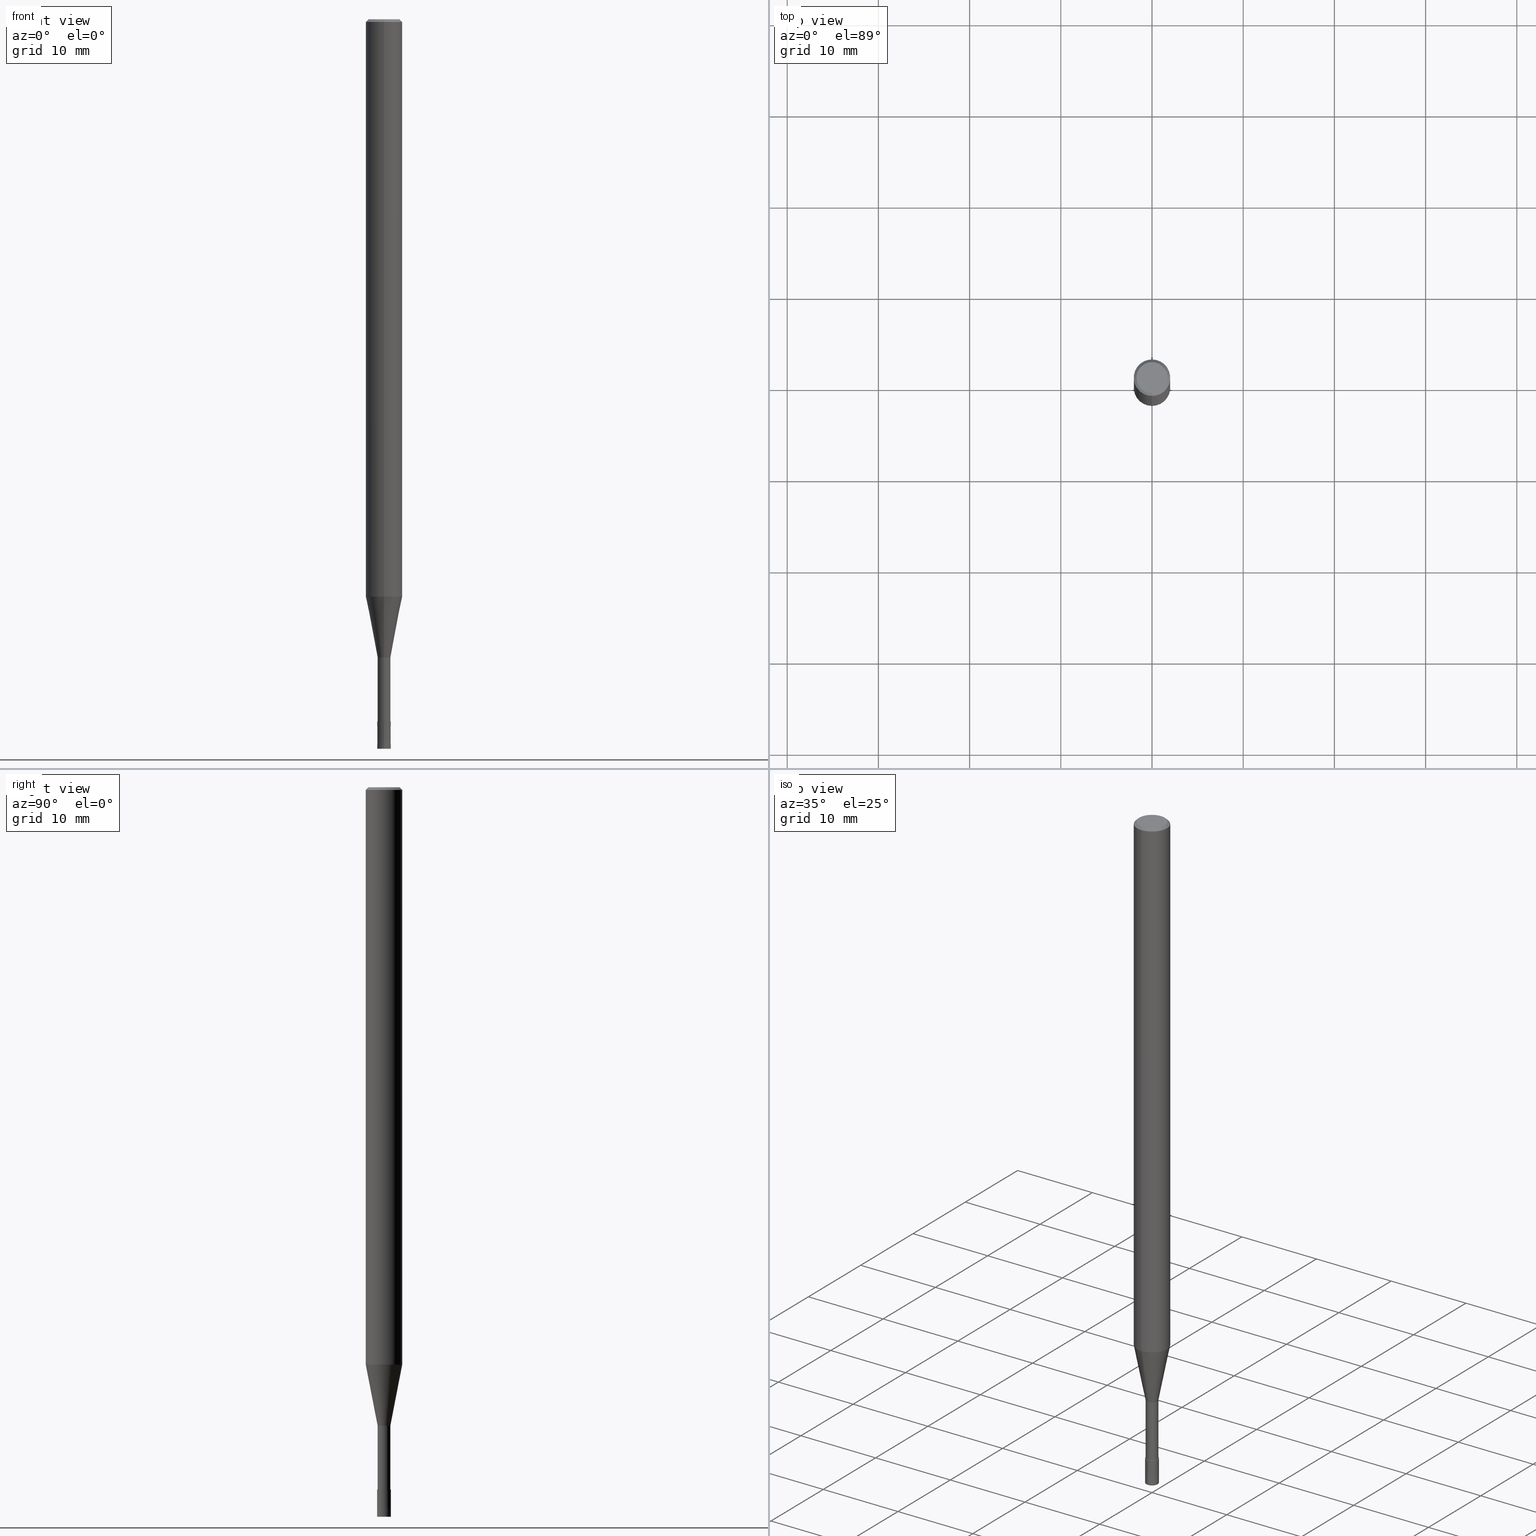
[diagram: canonical four-view strip — front | top / right | iso, engineering-drawing reading convention]
A machine part, canonical four-view strip (front | top / right | iso — engineering-drawing reading convention). The complete STEP part file that produces these views, byte-faithful:
ISO-10303-21;
HEADER;
FILE_DESCRIPTION(('no description'),'unknown implementation level');
FILE_NAME('CPRL2015-10-Huellk.stp','  ',('CIMSOURCE GmbH'),('CADClick - KiM GmbH - www.kimweb.de'),'unknown preprocess','ACIS','unknown authorization');
FILE_SCHEMA(('automotive_design'));
ENDSEC;
DATA;
#1=MECHANICAL_DESIGN_GEOMETRIC_PRESENTATION_REPRESENTATION(' ',(#14,#15,#16,#17,#18,#19,#20,#21,#22,#23,#24,#25,#26,#27,#28,#29,#30,#31,#32,#33,#34,#35,#36,#37,#38,#39,#40,#41,#42,#43,#44,#45,#46,#47,#48,#49,#50,#51,#52,#53,#54,#55,#56,#57,#58,#59,#60,#61,#62,#63,#64,#65,#66,#67,#68,#69,#70,#71,#72),#10);
#2=PRODUCT_DEFINITION_CONTEXT('',#73,'design');
#3=APPLICATION_PROTOCOL_DEFINITION('INTERNATIONAL STANDARD','automotive_design',1994,#73);
#4=PRODUCT_CATEGORY_RELATIONSHIP('NONE','NONE',#74,#75);
#5=SHAPE_DEFINITION_REPRESENTATION(#76,#77);
#6=PRODUCT_DEFINITION_CONTEXT('',#78,'design');
#7=APPLICATION_PROTOCOL_DEFINITION('INTERNATIONAL STANDARD','automotive_design',1994,#78);
#8=PRODUCT_CATEGORY_RELATIONSHIP('NONE','NONE',#79,#80);
#9=SHAPE_DEFINITION_REPRESENTATION(#81,#82);
#10= (GEOMETRIC_REPRESENTATION_CONTEXT(3)GLOBAL_UNCERTAINTY_ASSIGNED_CONTEXT((#85))GLOBAL_UNIT_ASSIGNED_CONTEXT((#87,#88,#89))REPRESENTATION_CONTEXT('NONE','WORKSPACE'));
#14=STYLED_ITEM('',(#91),#92);
#15=STYLED_ITEM('',(#93),#94);
#16=STYLED_ITEM('',(#95),#96);
#17=STYLED_ITEM('',(#97),#98);
#18=STYLED_ITEM('',(#99),#100);
#19=STYLED_ITEM('',(#101),#102);
#20=STYLED_ITEM('',(#103),#104);
#21=STYLED_ITEM('',(#105),#106);
#22=STYLED_ITEM('',(#107),#108);
#23=STYLED_ITEM('',(#109),#110);
#24=STYLED_ITEM('',(#111),#112);
#25=STYLED_ITEM('',(#113),#114);
#26=STYLED_ITEM('',(#115),#116);
#27=STYLED_ITEM('',(#117),#118);
#28=STYLED_ITEM('',(#119),#120);
#29=STYLED_ITEM('',(#121),#122);
#30=STYLED_ITEM('',(#123),#124);
#31=STYLED_ITEM('',(#125),#126);
#32=STYLED_ITEM('',(#127),#128);
#33=STYLED_ITEM('',(#129),#130);
#34=STYLED_ITEM('',(#131),#132);
#35=STYLED_ITEM('',(#133),#134);
#36=STYLED_ITEM('',(#135),#136);
#37=STYLED_ITEM('',(#137),#138);
#38=STYLED_ITEM('',(#139),#140);
#39=STYLED_ITEM('',(#141),#142);
#40=STYLED_ITEM('',(#143),#144);
#41=STYLED_ITEM('',(#145),#146);
#42=STYLED_ITEM('',(#147),#148);
#43=STYLED_ITEM('',(#149),#150);
#44=STYLED_ITEM('',(#151),#152);
#45=STYLED_ITEM('',(#153),#154);
#46=STYLED_ITEM('',(#155),#156);
#47=STYLED_ITEM('',(#157),#158);
#48=STYLED_ITEM('',(#159),#160);
#49=STYLED_ITEM('',(#161),#162);
#50=STYLED_ITEM('',(#163),#164);
#51=STYLED_ITEM('',(#165),#166);
#52=STYLED_ITEM('',(#167),#168);
#53=STYLED_ITEM('',(#169),#170);
#54=STYLED_ITEM('',(#171),#172);
#55=STYLED_ITEM('',(#173),#174);
#56=STYLED_ITEM('',(#175),#176);
#57=STYLED_ITEM('',(#177),#178);
#58=STYLED_ITEM('',(#179),#180);
#59=STYLED_ITEM('',(#181),#182);
#60=STYLED_ITEM('',(#183),#184);
#61=STYLED_ITEM('',(#185),#186);
#62=STYLED_ITEM('',(#187),#188);
#63=STYLED_ITEM('',(#189),#190);
#64=STYLED_ITEM('',(#191),#192);
#65=STYLED_ITEM('',(#193),#194);
#66=STYLED_ITEM('',(#195),#196);
#67=STYLED_ITEM('',(#197),#198);
#68=STYLED_ITEM('',(#199),#200);
#69=STYLED_ITEM('',(#201),#202);
#70=STYLED_ITEM('',(#203),#204);
#71=STYLED_ITEM('',(#205),#206);
#72=STYLED_ITEM('',(#207),#208);
#73=APPLICATION_CONTEXT(' ');
#74=PRODUCT_CATEGORY('part','NONE');
#75=PRODUCT_RELATED_PRODUCT_CATEGORY('detail',' ',(#209));
#76=PRODUCT_DEFINITION_SHAPE('NONE','NONE',#210);
#77=ADVANCED_BREP_SHAPE_REPRESENTATION('1',(#132,#211),#10);
#78=APPLICATION_CONTEXT(' ');
#79=PRODUCT_CATEGORY('part','NONE');
#80=PRODUCT_RELATED_PRODUCT_CATEGORY('detail',' ',(#212));
#81=PRODUCT_DEFINITION_SHAPE('NONE','NONE',#213);
#82=ADVANCED_BREP_SHAPE_REPRESENTATION('2',(#172,#214),#10);
#85=UNCERTAINTY_MEASURE_WITH_UNIT(LENGTH_MEASURE(1.0E-006),#87,'','');
#87= (CONVERSION_BASED_UNIT('MILLIMETRE',#217)LENGTH_UNIT()NAMED_UNIT(#220));
#88= (NAMED_UNIT(#222)PLANE_ANGLE_UNIT()SI_UNIT($,.RADIAN.));
#89= (NAMED_UNIT(#222)SOLID_ANGLE_UNIT()SI_UNIT($,.STERADIAN.));
#91=PRESENTATION_STYLE_ASSIGNMENT((#228));
#92=EDGE_CURVE('',#110,#204,#229,.T.);
#93=PRESENTATION_STYLE_ASSIGNMENT((#230));
#94=EDGE_CURVE('',#164,#182,#231,.T.);
#95=PRESENTATION_STYLE_ASSIGNMENT((#232));
#96=ADVANCED_FACE('',(#233),#234,.T.);
#97=PRESENTATION_STYLE_ASSIGNMENT((#235));
#98=EDGE_CURVE('',#182,#116,#236,.T.);
#99=PRESENTATION_STYLE_ASSIGNMENT((#237));
#100=ADVANCED_FACE('',(#238),#239,.T.);
#101=PRESENTATION_STYLE_ASSIGNMENT((#240));
#102=VERTEX_POINT('',#241);
#103=PRESENTATION_STYLE_ASSIGNMENT((#242));
#104=ADVANCED_FACE('',(#243),#244,.T.);
#105=PRESENTATION_STYLE_ASSIGNMENT((#245));
#106=VERTEX_POINT('',#246);
#107=PRESENTATION_STYLE_ASSIGNMENT((#247));
#108=EDGE_CURVE('',#102,#120,#248,.T.);
#109=PRESENTATION_STYLE_ASSIGNMENT((#249));
#110=VERTEX_POINT('',#250);
#111=PRESENTATION_STYLE_ASSIGNMENT((#251));
#112=EDGE_CURVE('',#204,#144,#252,.T.);
#113=PRESENTATION_STYLE_ASSIGNMENT((#253));
#114=EDGE_CURVE('',#156,#144,#254,.T.);
#115=PRESENTATION_STYLE_ASSIGNMENT((#255));
#116=VERTEX_POINT('',#256);
#117=PRESENTATION_STYLE_ASSIGNMENT((#257));
#118=EDGE_CURVE('',#126,#120,#258,.T.);
#119=PRESENTATION_STYLE_ASSIGNMENT((#259));
#120=VERTEX_POINT('',#260);
#121=PRESENTATION_STYLE_ASSIGNMENT((#261));
#122=EDGE_CURVE('',#178,#170,#262,.T.);
#123=PRESENTATION_STYLE_ASSIGNMENT((#263));
#124=EDGE_CURVE('',#150,#106,#264,.T.);
#125=PRESENTATION_STYLE_ASSIGNMENT((#265));
#126=VERTEX_POINT('',#266);
#127=PRESENTATION_STYLE_ASSIGNMENT((#267));
#128=ADVANCED_FACE('',(#268),#269,.T.);
#129=PRESENTATION_STYLE_ASSIGNMENT((#270));
#130=ADVANCED_FACE('',(#271,#272),#273,.T.);
#131=PRESENTATION_STYLE_ASSIGNMENT((#274));
#132=MANIFOLD_SOLID_BREP('1',#275);
#133=PRESENTATION_STYLE_ASSIGNMENT((#276));
#134=EDGE_CURVE('',#126,#174,#277,.T.);
#135=PRESENTATION_STYLE_ASSIGNMENT((#278));
#136=ADVANCED_FACE('',(#279),#280,.T.);
#137=PRESENTATION_STYLE_ASSIGNMENT((#281));
#138=ADVANCED_FACE('',(#282),#283,.T.);
#139=PRESENTATION_STYLE_ASSIGNMENT((#284));
#140=ADVANCED_FACE('',(#285),#286,.T.);
#141=PRESENTATION_STYLE_ASSIGNMENT((#287));
#142=EDGE_CURVE('',#156,#110,#288,.T.);
#143=PRESENTATION_STYLE_ASSIGNMENT((#289));
#144=VERTEX_POINT('',#290);
#145=PRESENTATION_STYLE_ASSIGNMENT((#291));
#146=EDGE_CURVE('',#106,#164,#292,.T.);
#147=PRESENTATION_STYLE_ASSIGNMENT((#293));
#148=ADVANCED_FACE('',(#294),#295,.T.);
#149=PRESENTATION_STYLE_ASSIGNMENT((#296));
#150=VERTEX_POINT('',#297);
#151=PRESENTATION_STYLE_ASSIGNMENT((#298));
#152=ADVANCED_FACE('',(#299),#300,.T.);
#153=PRESENTATION_STYLE_ASSIGNMENT((#301));
#154=EDGE_CURVE('',#168,#150,#302,.T.);
#155=PRESENTATION_STYLE_ASSIGNMENT((#303));
#156=VERTEX_POINT('',#304);
#157=PRESENTATION_STYLE_ASSIGNMENT((#305));
#158=EDGE_CURVE('',#116,#168,#306,.T.);
#159=PRESENTATION_STYLE_ASSIGNMENT((#307));
#160=EDGE_CURVE('',#106,#150,#308,.T.);
#161=PRESENTATION_STYLE_ASSIGNMENT((#309));
#162=ADVANCED_FACE('',(#310),#311,.T.);
#163=PRESENTATION_STYLE_ASSIGNMENT((#312));
#164=VERTEX_POINT('',#313);
#165=PRESENTATION_STYLE_ASSIGNMENT((#314));
#166=EDGE_CURVE('',#168,#164,#315,.T.);
#167=PRESENTATION_STYLE_ASSIGNMENT((#316));
#168=VERTEX_POINT('',#317);
#169=PRESENTATION_STYLE_ASSIGNMENT((#318));
#170=VERTEX_POINT('',#319);
#171=PRESENTATION_STYLE_ASSIGNMENT((#320));
#172=MANIFOLD_SOLID_BREP('2',#321);
#173=PRESENTATION_STYLE_ASSIGNMENT((#322));
#174=VERTEX_POINT('',#323);
#175=PRESENTATION_STYLE_ASSIGNMENT((#324));
#176=ADVANCED_FACE('',(#325),#326,.T.);
#177=PRESENTATION_STYLE_ASSIGNMENT((#327));
#178=VERTEX_POINT('',#328);
#179=PRESENTATION_STYLE_ASSIGNMENT((#329));
#180=ADVANCED_FACE('',(#330),#331,.T.);
#181=PRESENTATION_STYLE_ASSIGNMENT((#332));
#182=VERTEX_POINT('',#333);
#183=PRESENTATION_STYLE_ASSIGNMENT((#334));
#184=EDGE_CURVE('',#116,#182,#335,.T.);
#185=PRESENTATION_STYLE_ASSIGNMENT((#336));
#186=ADVANCED_FACE('',(#337),#338,.T.);
#187=PRESENTATION_STYLE_ASSIGNMENT((#339));
#188=EDGE_CURVE('',#178,#156,#340,.T.);
#189=PRESENTATION_STYLE_ASSIGNMENT((#341));
#190=EDGE_CURVE('',#144,#156,#342,.T.);
#191=PRESENTATION_STYLE_ASSIGNMENT((#343));
#192=EDGE_CURVE('',#204,#110,#344,.T.);
#193=PRESENTATION_STYLE_ASSIGNMENT((#345));
#194=EDGE_CURVE('',#102,#174,#346,.T.);
#195=PRESENTATION_STYLE_ASSIGNMENT((#347));
#196=EDGE_CURVE('',#174,#102,#348,.T.);
#197=PRESENTATION_STYLE_ASSIGNMENT((#349));
#198=EDGE_CURVE('',#120,#126,#350,.T.);
#199=PRESENTATION_STYLE_ASSIGNMENT((#351));
#200=EDGE_CURVE('',#170,#178,#352,.T.);
#201=PRESENTATION_STYLE_ASSIGNMENT((#353));
#202=ADVANCED_FACE('',(#354),#355,.T.);
#203=PRESENTATION_STYLE_ASSIGNMENT((#356));
#204=VERTEX_POINT('',#357);
#205=PRESENTATION_STYLE_ASSIGNMENT((#358));
#206=EDGE_CURVE('',#164,#168,#359,.T.);
#207=PRESENTATION_STYLE_ASSIGNMENT((#360));
#208=EDGE_CURVE('',#144,#170,#361,.T.);
#209=PRODUCT('1','1','PART-1-DESC',(#362));
#210=PRODUCT_DEFINITION('NONE','NONE',#363,#2);
#211=AXIS2_PLACEMENT_3D('',#364,#365,#366);
#212=PRODUCT('2','2','PART-2-DESC',(#367));
#213=PRODUCT_DEFINITION('NONE','NONE',#368,#6);
#214=AXIS2_PLACEMENT_3D('',#369,#370,#371);
#217=LENGTH_MEASURE_WITH_UNIT(LENGTH_MEASURE(1.0),#372);
#220=DIMENSIONAL_EXPONENTS(1.0,0.0,0.0,0.0,0.0,0.0,0.0);
#222=DIMENSIONAL_EXPONENTS(0.0,0.0,0.0,0.0,0.0,0.0,0.0);
#228=CURVE_STYLE('',#373,POSITIVE_LENGTH_MEASURE(1.0E-006),#374);
#229=CIRCLE('',#375,1.99995);
#230=CURVE_STYLE('',#376,POSITIVE_LENGTH_MEASURE(1.0E-006),#377);
#231=LINE('',#378,#379);
#232=SURFACE_STYLE_USAGE(.BOTH.,#380);
#233=FACE_OUTER_BOUND('',#381,.T.);
#234=CYLINDRICAL_SURFACE('',#382,0.69995);
#235=CURVE_STYLE('',#383,POSITIVE_LENGTH_MEASURE(1.0E-006),#384);
#236=CIRCLE('',#385,1.7);
#237=SURFACE_STYLE_USAGE(.BOTH.,#386);
#238=FACE_OUTER_BOUND('',#387,.T.);
#239=CYLINDRICAL_SURFACE('',#388,2.0);
#240=POINT_STYLE(' ',#389,POSITIVE_LENGTH_MEASURE(1.0E-006),#390);
#241=CARTESIAN_POINT('',(9.18454765366783E-017,-0.75,-80.0));
#242=SURFACE_STYLE_USAGE(.BOTH.,#391);
#243=FACE_OUTER_BOUND('',#392,.T.);
#244=PLANE('',#393);
#245=POINT_STYLE(' ',#394,POSITIVE_LENGTH_MEASURE(1.0E-006),#395);
#246=CARTESIAN_POINT('',(2.44921270764475E-016,-2.0,-63.312));
#247=CURVE_STYLE('',#396,POSITIVE_LENGTH_MEASURE(1.0E-006),#397);
#248=LINE('',#398,#399);
#249=POINT_STYLE(' ',#400,POSITIVE_LENGTH_MEASURE(1.0E-006),#401);
#250=CARTESIAN_POINT('',(2.44915147732706E-016,-1.99995,-63.312));
#251=CURVE_STYLE('',#402,POSITIVE_LENGTH_MEASURE(1.0E-006),#403);
#252=LINE('',#404,#405);
#253=CURVE_STYLE('',#406,POSITIVE_LENGTH_MEASURE(1.0E-006),#407);
#254=CIRCLE('',#408,0.69995);
#255=POINT_STYLE(' ',#409,POSITIVE_LENGTH_MEASURE(1.0E-006),#410);
#256=CARTESIAN_POINT('',(0.0,1.7,0.0));
#257=CURVE_STYLE('',#411,POSITIVE_LENGTH_MEASURE(1.0E-006),#412);
#258=CIRCLE('',#413,0.7499);
#259=POINT_STYLE(' ',#414,POSITIVE_LENGTH_MEASURE(1.0E-006),#415);
#260=CARTESIAN_POINT('',(9.18332304731401E-017,-0.7499,-77.0));
#261=CURVE_STYLE('',#416,POSITIVE_LENGTH_MEASURE(1.0E-006),#417);
#262=CIRCLE('',#418,0.69995);
#263=CURVE_STYLE('',#419,POSITIVE_LENGTH_MEASURE(1.0E-006),#420);
#264=CIRCLE('',#421,2.0);
#265=POINT_STYLE(' ',#422,POSITIVE_LENGTH_MEASURE(1.0E-006),#423);
#266=CARTESIAN_POINT('',(0.0,0.7499,-77.0));
#267=SURFACE_STYLE_USAGE(.BOTH.,#424);
#268=FACE_OUTER_BOUND('',#425,.T.);
#269=CONICAL_SURFACE('',#426,1.85,0.785398163397453);
#270=SURFACE_STYLE_USAGE(.BOTH.,#427);
#271=FACE_OUTER_BOUND('',#428,.T.);
#272=FACE_BOUND('',#429,.T.);
#273=PLANE('',#430);
#274=SURFACE_STYLE_USAGE(.BOTH.,#431);
#275=CLOSED_SHELL('',(#136,#176,#202,#162,#130,#140,#128,#100,#152,#96,#104));
#276=CURVE_STYLE('',#432,POSITIVE_LENGTH_MEASURE(1.0E-006),#433);
#277=LINE('',#434,#435);
#278=SURFACE_STYLE_USAGE(.BOTH.,#436);
#279=FACE_OUTER_BOUND('',#437,.T.);
#280=CYLINDRICAL_SURFACE('',#438,0.69995);
#281=SURFACE_STYLE_USAGE(.BOTH.,#439);
#282=FACE_OUTER_BOUND('',#440,.T.);
#283=CONICAL_SURFACE('',#441,0.74995,3.3333333320984E-005);
#284=SURFACE_STYLE_USAGE(.BOTH.,#442);
#285=FACE_OUTER_BOUND('',#443,.T.);
#286=PLANE('',#444);
#287=CURVE_STYLE('',#445,POSITIVE_LENGTH_MEASURE(1.0E-006),#446);
#288=LINE('',#447,#448);
#289=POINT_STYLE(' ',#449,POSITIVE_LENGTH_MEASURE(1.0E-006),#450);
#290=CARTESIAN_POINT('',(0.0,0.69995,-70.0));
#291=CURVE_STYLE('',#451,POSITIVE_LENGTH_MEASURE(1.0E-006),#452);
#292=LINE('',#453,#454);
#293=SURFACE_STYLE_USAGE(.BOTH.,#455);
#294=FACE_OUTER_BOUND('',#456,.T.);
#295=PLANE('',#457);
#296=POINT_STYLE(' ',#458,POSITIVE_LENGTH_MEASURE(1.0E-006),#459);
#297=CARTESIAN_POINT('',(0.0,2.0,-63.312));
#298=SURFACE_STYLE_USAGE(.BOTH.,#460);
#299=FACE_OUTER_BOUND('',#461,.T.);
#300=CONICAL_SURFACE('',#462,1.34995,0.191983983430966);
#301=CURVE_STYLE('',#463,POSITIVE_LENGTH_MEASURE(1.0E-006),#464);
#302=LINE('',#465,#466);
#303=POINT_STYLE(' ',#467,POSITIVE_LENGTH_MEASURE(1.0E-006),#468);
#304=CARTESIAN_POINT('',(8.57163217357973E-017,-0.69995,-70.0));
#305=CURVE_STYLE('',#469,POSITIVE_LENGTH_MEASURE(1.0E-006),#470);
#306=LINE('',#471,#472);
#307=CURVE_STYLE('',#473,POSITIVE_LENGTH_MEASURE(1.0E-006),#474);
#308=CIRCLE('',#475,2.0);
#309=SURFACE_STYLE_USAGE(.BOTH.,#476);
#310=FACE_OUTER_BOUND('',#477,.T.);
#311=CONICAL_SURFACE('',#478,1.85,0.785398163397453);
#312=POINT_STYLE(' ',#479,POSITIVE_LENGTH_MEASURE(1.0E-006),#480);
#313=CARTESIAN_POINT('',(2.44921270764475E-016,-2.0,-0.299999999999997));
#314=CURVE_STYLE('',#481,POSITIVE_LENGTH_MEASURE(1.0E-006),#482);
#315=CIRCLE('',#483,2.0);
#316=POINT_STYLE(' ',#484,POSITIVE_LENGTH_MEASURE(1.0E-006),#485);
#317=CARTESIAN_POINT('',(0.0,2.0,-0.299999999999997));
#318=POINT_STYLE(' ',#486,POSITIVE_LENGTH_MEASURE(1.0E-006),#487);
#319=CARTESIAN_POINT('',(0.0,0.69995,-77.0));
#320=SURFACE_STYLE_USAGE(.BOTH.,#488);
#321=CLOSED_SHELL('',(#138,#180,#186,#148));
#322=POINT_STYLE(' ',#489,POSITIVE_LENGTH_MEASURE(1.0E-006),#490);
#323=CARTESIAN_POINT('',(0.0,0.75,-80.0));
#324=SURFACE_STYLE_USAGE(.BOTH.,#491);
#325=FACE_OUTER_BOUND('',#492,.T.);
#326=CONICAL_SURFACE('',#493,1.34995,0.191983983430966);
#327=POINT_STYLE(' ',#494,POSITIVE_LENGTH_MEASURE(1.0E-006),#495);
#328=CARTESIAN_POINT('',(8.57163217357973E-017,-0.69995,-77.0));
#329=SURFACE_STYLE_USAGE(.BOTH.,#496);
#330=FACE_OUTER_BOUND('',#497,.T.);
#331=PLANE('',#498);
#332=POINT_STYLE(' ',#499,POSITIVE_LENGTH_MEASURE(1.0E-006),#500);
#333=CARTESIAN_POINT('',(2.08183080149804E-016,-1.7,0.0));
#334=CURVE_STYLE('',#501,POSITIVE_LENGTH_MEASURE(1.0E-006),#502);
#335=CIRCLE('',#503,1.7);
#336=SURFACE_STYLE_USAGE(.BOTH.,#504);
#337=FACE_OUTER_BOUND('',#505,.T.);
#338=CONICAL_SURFACE('',#506,0.74995,3.3333333320984E-005);
#339=CURVE_STYLE('',#507,POSITIVE_LENGTH_MEASURE(1.0E-006),#508);
#340=LINE('',#509,#510);
#341=CURVE_STYLE('',#511,POSITIVE_LENGTH_MEASURE(1.0E-006),#512);
#342=CIRCLE('',#513,0.69995);
#343=CURVE_STYLE('',#514,POSITIVE_LENGTH_MEASURE(1.0E-006),#515);
#344=CIRCLE('',#516,1.99995);
#345=CURVE_STYLE('',#517,POSITIVE_LENGTH_MEASURE(1.0E-006),#518);
#346=CIRCLE('',#519,0.75);
#347=CURVE_STYLE('',#520,POSITIVE_LENGTH_MEASURE(1.0E-006),#521);
#348=CIRCLE('',#522,0.75);
#349=CURVE_STYLE('',#523,POSITIVE_LENGTH_MEASURE(1.0E-006),#524);
#350=CIRCLE('',#525,0.7499);
#351=CURVE_STYLE('',#526,POSITIVE_LENGTH_MEASURE(1.0E-006),#527);
#352=CIRCLE('',#528,0.69995);
#353=SURFACE_STYLE_USAGE(.BOTH.,#529);
#354=FACE_OUTER_BOUND('',#530,.T.);
#355=CYLINDRICAL_SURFACE('',#531,2.0);
#356=POINT_STYLE(' ',#532,POSITIVE_LENGTH_MEASURE(1.0E-006),#533);
#357=CARTESIAN_POINT('',(0.0,1.99995,-63.312));
#358=CURVE_STYLE('',#534,POSITIVE_LENGTH_MEASURE(1.0E-006),#535);
#359=CIRCLE('',#536,2.0);
#360=CURVE_STYLE('',#537,POSITIVE_LENGTH_MEASURE(1.0E-006),#538);
#361=LINE('',#539,#540);
#362=PRODUCT_CONTEXT('',#73,'mechanical');
#363=PRODUCT_DEFINITION_FORMATION_WITH_SPECIFIED_SOURCE(' ','NONE',#209,.NOT_KNOWN.);
#364=CARTESIAN_POINT('',(0.0,0.0,0.0));
#365=DIRECTION('',(0.0,0.0,1.0));
#366=DIRECTION('',(1.0,0.0,0.0));
#367=PRODUCT_CONTEXT('',#78,'mechanical');
#368=PRODUCT_DEFINITION_FORMATION_WITH_SPECIFIED_SOURCE(' ','NONE',#212,.NOT_KNOWN.);
#369=CARTESIAN_POINT('',(0.0,0.0,0.0));
#370=DIRECTION('',(0.0,0.0,1.0));
#371=DIRECTION('',(1.0,0.0,0.0));
#372= (NAMED_UNIT(#220)LENGTH_UNIT()SI_UNIT(.MILLI.,.METRE.));
#373=DRAUGHTING_PRE_DEFINED_CURVE_FONT('continuous');
#374=COLOUR_RGB('',0.498039215803146,0.498039215803146,0.498039215803146);
#375=AXIS2_PLACEMENT_3D('',#542,#543,#544);
#376=DRAUGHTING_PRE_DEFINED_CURVE_FONT('continuous');
#377=COLOUR_RGB('',0.498039215803146,0.498039215803146,0.498039215803146);
#378=CARTESIAN_POINT('',(2.2655217545714E-016,-1.85,-0.149999999999999));
#379=VECTOR('',#545,1.0);
#380=SURFACE_SIDE_STYLE('',(#546));
#381=EDGE_LOOP('',(#547,#548,#549,#550));
#382=AXIS2_PLACEMENT_3D('',#551,#552,#553);
#383=DRAUGHTING_PRE_DEFINED_CURVE_FONT('continuous');
#384=COLOUR_RGB('',0.498039215803146,0.498039215803146,0.498039215803146);
#385=AXIS2_PLACEMENT_3D('',#554,#555,#556);
#386=SURFACE_SIDE_STYLE('',(#557));
#387=EDGE_LOOP('',(#558,#559,#560,#561));
#388=AXIS2_PLACEMENT_3D('',#562,#563,#564);
#389=PRE_DEFINED_MARKER('');
#390=COLOUR_RGB('',0.800000011920929,0.800000011920929,0.800000011920929);
#391=SURFACE_SIDE_STYLE('',(#565));
#392=EDGE_LOOP('',(#566,#567));
#393=AXIS2_PLACEMENT_3D('',#568,#569,#570);
#394=PRE_DEFINED_MARKER('');
#395=COLOUR_RGB('',0.498039215803146,0.498039215803146,0.498039215803146);
#396=DRAUGHTING_PRE_DEFINED_CURVE_FONT('continuous');
#397=COLOUR_RGB('',0.800000011920929,0.800000011920929,0.800000011920929);
#398=CARTESIAN_POINT('',(9.18393535049092E-017,-0.74995,-78.5));
#399=VECTOR('',#571,1.0);
#400=PRE_DEFINED_MARKER('');
#401=COLOUR_RGB('',0.498039215803146,0.498039215803146,0.498039215803146);
#402=DRAUGHTING_PRE_DEFINED_CURVE_FONT('continuous');
#403=COLOUR_RGB('',0.498039215803146,0.498039215803146,0.498039215803146);
#404=CARTESIAN_POINT('',(-1.65315734734252E-016,1.34995,-66.656));
#405=VECTOR('',#572,1.0);
#406=DRAUGHTING_PRE_DEFINED_CURVE_FONT('continuous');
#407=COLOUR_RGB('',0.498039215803146,0.498039215803146,0.498039215803146);
#408=AXIS2_PLACEMENT_3D('',#573,#574,#575);
#409=PRE_DEFINED_MARKER('');
#410=COLOUR_RGB('',0.498039215803146,0.498039215803146,0.498039215803146);
#411=DRAUGHTING_PRE_DEFINED_CURVE_FONT('continuous');
#412=COLOUR_RGB('',0.800000011920929,0.800000011920929,0.800000011920929);
#413=AXIS2_PLACEMENT_3D('',#576,#577,#578);
#414=PRE_DEFINED_MARKER('');
#415=COLOUR_RGB('',0.800000011920929,0.800000011920929,0.800000011920929);
#416=DRAUGHTING_PRE_DEFINED_CURVE_FONT('continuous');
#417=COLOUR_RGB('',0.498039215803146,0.498039215803146,0.498039215803146);
#418=AXIS2_PLACEMENT_3D('',#579,#580,#581);
#419=DRAUGHTING_PRE_DEFINED_CURVE_FONT('continuous');
#420=COLOUR_RGB('',0.498039215803146,0.498039215803146,0.498039215803146);
#421=AXIS2_PLACEMENT_3D('',#582,#583,#584);
#422=PRE_DEFINED_MARKER('');
#423=COLOUR_RGB('',0.800000011920929,0.800000011920929,0.800000011920929);
#424=SURFACE_SIDE_STYLE('',(#585));
#425=EDGE_LOOP('',(#586,#587,#588,#589));
#426=AXIS2_PLACEMENT_3D('',#590,#591,#592);
#427=SURFACE_SIDE_STYLE('',(#593));
#428=EDGE_LOOP('',(#594,#595));
#429=EDGE_LOOP('',(#596,#597));
#430=AXIS2_PLACEMENT_3D('',#598,#599,#600);
#431=SURFACE_SIDE_STYLE('',(#601));
#432=DRAUGHTING_PRE_DEFINED_CURVE_FONT('continuous');
#433=COLOUR_RGB('',0.800000011920929,0.800000011920929,0.800000011920929);
#434=CARTESIAN_POINT('',(-9.18393535049092E-017,0.74995,-78.5));
#435=VECTOR('',#602,1.0);
#436=SURFACE_SIDE_STYLE('',(#603));
#437=EDGE_LOOP('',(#604,#605,#606,#607));
#438=AXIS2_PLACEMENT_3D('',#608,#609,#610);
#439=SURFACE_SIDE_STYLE('',(#611));
#440=EDGE_LOOP('',(#612,#613,#614,#615));
#441=AXIS2_PLACEMENT_3D('',#616,#617,#618);
#442=SURFACE_SIDE_STYLE('',(#619));
#443=EDGE_LOOP('',(#620,#621));
#444=AXIS2_PLACEMENT_3D('',#622,#623,#624);
#445=DRAUGHTING_PRE_DEFINED_CURVE_FONT('continuous');
#446=COLOUR_RGB('',0.498039215803146,0.498039215803146,0.498039215803146);
#447=CARTESIAN_POINT('',(1.65315734734252E-016,-1.34995,-66.656));
#448=VECTOR('',#625,1.0);
#449=PRE_DEFINED_MARKER('');
#450=COLOUR_RGB('',0.498039215803146,0.498039215803146,0.498039215803146);
#451=DRAUGHTING_PRE_DEFINED_CURVE_FONT('continuous');
#452=COLOUR_RGB('',0.498039215803146,0.498039215803146,0.498039215803146);
#453=CARTESIAN_POINT('',(2.44921270764475E-016,-2.0,-31.806));
#454=VECTOR('',#626,1.0);
#455=SURFACE_SIDE_STYLE('',(#627));
#456=EDGE_LOOP('',(#628,#629));
#457=AXIS2_PLACEMENT_3D('',#630,#631,#632);
#458=PRE_DEFINED_MARKER('');
#459=COLOUR_RGB('',0.498039215803146,0.498039215803146,0.498039215803146);
#460=SURFACE_SIDE_STYLE('',(#633));
#461=EDGE_LOOP('',(#634,#635,#636,#637));
#462=AXIS2_PLACEMENT_3D('',#638,#639,#640);
#463=DRAUGHTING_PRE_DEFINED_CURVE_FONT('continuous');
#464=COLOUR_RGB('',0.498039215803146,0.498039215803146,0.498039215803146);
#465=CARTESIAN_POINT('',(-2.44921270764475E-016,2.0,-31.806));
#466=VECTOR('',#641,1.0);
#467=PRE_DEFINED_MARKER('');
#468=COLOUR_RGB('',0.498039215803146,0.498039215803146,0.498039215803146);
#469=DRAUGHTING_PRE_DEFINED_CURVE_FONT('continuous');
#470=COLOUR_RGB('',0.498039215803146,0.498039215803146,0.498039215803146);
#471=CARTESIAN_POINT('',(-2.2655217545714E-016,1.85,-0.149999999999999));
#472=VECTOR('',#642,1.0);
#473=DRAUGHTING_PRE_DEFINED_CURVE_FONT('continuous');
#474=COLOUR_RGB('',0.498039215803146,0.498039215803146,0.498039215803146);
#475=AXIS2_PLACEMENT_3D('',#643,#644,#645);
#476=SURFACE_SIDE_STYLE('',(#646));
#477=EDGE_LOOP('',(#647,#648,#649,#650));
#478=AXIS2_PLACEMENT_3D('',#651,#652,#653);
#479=PRE_DEFINED_MARKER('');
#480=COLOUR_RGB('',0.498039215803146,0.498039215803146,0.498039215803146);
#481=DRAUGHTING_PRE_DEFINED_CURVE_FONT('continuous');
#482=COLOUR_RGB('',0.498039215803146,0.498039215803146,0.498039215803146);
#483=AXIS2_PLACEMENT_3D('',#654,#655,#656);
#484=PRE_DEFINED_MARKER('');
#485=COLOUR_RGB('',0.498039215803146,0.498039215803146,0.498039215803146);
#486=PRE_DEFINED_MARKER('');
#487=COLOUR_RGB('',0.498039215803146,0.498039215803146,0.498039215803146);
#488=SURFACE_SIDE_STYLE('',(#657));
#489=PRE_DEFINED_MARKER('');
#490=COLOUR_RGB('',0.800000011920929,0.800000011920929,0.800000011920929);
#491=SURFACE_SIDE_STYLE('',(#658));
#492=EDGE_LOOP('',(#659,#660,#661,#662));
#493=AXIS2_PLACEMENT_3D('',#663,#664,#665);
#494=PRE_DEFINED_MARKER('');
#495=COLOUR_RGB('',0.498039215803146,0.498039215803146,0.498039215803146);
#496=SURFACE_SIDE_STYLE('',(#666));
#497=EDGE_LOOP('',(#667,#668));
#498=AXIS2_PLACEMENT_3D('',#669,#670,#671);
#499=PRE_DEFINED_MARKER('');
#500=COLOUR_RGB('',0.498039215803146,0.498039215803146,0.498039215803146);
#501=DRAUGHTING_PRE_DEFINED_CURVE_FONT('continuous');
#502=COLOUR_RGB('',0.498039215803146,0.498039215803146,0.498039215803146);
#503=AXIS2_PLACEMENT_3D('',#672,#673,#674);
#504=SURFACE_SIDE_STYLE('',(#675));
#505=EDGE_LOOP('',(#676,#677,#678,#679));
#506=AXIS2_PLACEMENT_3D('',#680,#681,#682);
#507=DRAUGHTING_PRE_DEFINED_CURVE_FONT('continuous');
#508=COLOUR_RGB('',0.498039215803146,0.498039215803146,0.498039215803146);
#509=CARTESIAN_POINT('',(8.57163217357973E-017,-0.69995,-73.5));
#510=VECTOR('',#683,1.0);
#511=DRAUGHTING_PRE_DEFINED_CURVE_FONT('continuous');
#512=COLOUR_RGB('',0.498039215803146,0.498039215803146,0.498039215803146);
#513=AXIS2_PLACEMENT_3D('',#684,#685,#686);
#514=DRAUGHTING_PRE_DEFINED_CURVE_FONT('continuous');
#515=COLOUR_RGB('',0.498039215803146,0.498039215803146,0.498039215803146);
#516=AXIS2_PLACEMENT_3D('',#687,#688,#689);
#517=DRAUGHTING_PRE_DEFINED_CURVE_FONT('continuous');
#518=COLOUR_RGB('',0.800000011920929,0.800000011920929,0.800000011920929);
#519=AXIS2_PLACEMENT_3D('',#690,#691,#692);
#520=DRAUGHTING_PRE_DEFINED_CURVE_FONT('continuous');
#521=COLOUR_RGB('',0.800000011920929,0.800000011920929,0.800000011920929);
#522=AXIS2_PLACEMENT_3D('',#693,#694,#695);
#523=DRAUGHTING_PRE_DEFINED_CURVE_FONT('continuous');
#524=COLOUR_RGB('',0.800000011920929,0.800000011920929,0.800000011920929);
#525=AXIS2_PLACEMENT_3D('',#696,#697,#698);
#526=DRAUGHTING_PRE_DEFINED_CURVE_FONT('continuous');
#527=COLOUR_RGB('',0.498039215803146,0.498039215803146,0.498039215803146);
#528=AXIS2_PLACEMENT_3D('',#699,#700,#701);
#529=SURFACE_SIDE_STYLE('',(#702));
#530=EDGE_LOOP('',(#703,#704,#705,#706));
#531=AXIS2_PLACEMENT_3D('',#707,#708,#709);
#532=PRE_DEFINED_MARKER('');
#533=COLOUR_RGB('',0.498039215803146,0.498039215803146,0.498039215803146);
#534=DRAUGHTING_PRE_DEFINED_CURVE_FONT('continuous');
#535=COLOUR_RGB('',0.498039215803146,0.498039215803146,0.498039215803146);
#536=AXIS2_PLACEMENT_3D('',#710,#711,#712);
#537=DRAUGHTING_PRE_DEFINED_CURVE_FONT('continuous');
#538=COLOUR_RGB('',0.498039215803146,0.498039215803146,0.498039215803146);
#539=CARTESIAN_POINT('',(-8.57163217357973E-017,0.69995,-73.5));
#540=VECTOR('',#713,1.0);
#542=CARTESIAN_POINT('',(0.0,0.0,-63.312));
#543=DIRECTION('',(0.0,0.0,-1.0));
#544=DIRECTION('',(0.0,1.0,0.0));
#545=DIRECTION('',(-8.6592745707194E-017,0.707106781186551,0.707106781186544));
#546=SURFACE_STYLE_FILL_AREA(#714);
#547=ORIENTED_EDGE('',*,*,#208,.T.);
#548=ORIENTED_EDGE('',*,*,#122,.F.);
#549=ORIENTED_EDGE('',*,*,#188,.T.);
#550=ORIENTED_EDGE('',*,*,#114,.T.);
#551=CARTESIAN_POINT('',(0.0,0.0,-73.5));
#552=DIRECTION('',(-0.0,-0.0,1.0));
#553=DIRECTION('',(0.0,1.0,0.0));
#554=CARTESIAN_POINT('',(0.0,0.0,0.0));
#555=DIRECTION('',(0.0,0.0,-1.0));
#556=DIRECTION('',(0.0,1.0,0.0));
#557=SURFACE_STYLE_FILL_AREA(#715);
#558=ORIENTED_EDGE('',*,*,#154,.T.);
#559=ORIENTED_EDGE('',*,*,#160,.F.);
#560=ORIENTED_EDGE('',*,*,#146,.T.);
#561=ORIENTED_EDGE('',*,*,#206,.T.);
#562=CARTESIAN_POINT('',(0.0,0.0,-31.806));
#563=DIRECTION('',(-0.0,-0.0,1.0));
#564=DIRECTION('',(0.0,1.0,0.0));
#565=SURFACE_STYLE_FILL_AREA(#716);
#566=ORIENTED_EDGE('',*,*,#200,.T.);
#567=ORIENTED_EDGE('',*,*,#122,.T.);
#568=CARTESIAN_POINT('',(0.0,0.349975,-77.0));
#569=DIRECTION('',(0.0,0.0,-1.0));
#570=DIRECTION('',(0.0,1.0,0.0));
#571=DIRECTION('',(-4.08202117713969E-021,3.33333333148111E-005,0.999999999444445));
#572=DIRECTION('',(2.33663222250515E-017,-0.19080680213783,-0.981627609767541));
#573=CARTESIAN_POINT('',(0.0,0.0,-70.0));
#574=DIRECTION('',(0.0,0.0,-1.0));
#575=DIRECTION('',(0.0,1.0,0.0));
#576=CARTESIAN_POINT('',(0.0,0.0,-77.0));
#577=DIRECTION('',(0.0,0.0,-1.0));
#578=DIRECTION('',(0.0,1.0,0.0));
#579=CARTESIAN_POINT('',(0.0,0.0,-77.0));
#580=DIRECTION('',(0.0,0.0,-1.0));
#581=DIRECTION('',(0.0,1.0,0.0));
#582=CARTESIAN_POINT('',(0.0,0.0,-63.312));
#583=DIRECTION('',(0.0,0.0,-1.0));
#584=DIRECTION('',(0.0,1.0,0.0));
#585=SURFACE_STYLE_FILL_AREA(#717);
#586=ORIENTED_EDGE('',*,*,#158,.T.);
#587=ORIENTED_EDGE('',*,*,#206,.F.);
#588=ORIENTED_EDGE('',*,*,#94,.T.);
#589=ORIENTED_EDGE('',*,*,#98,.T.);
#590=CARTESIAN_POINT('',(0.0,0.0,-0.149999999999999));
#591=DIRECTION('',(0.0,-0.0,-1.0));
#592=DIRECTION('',(0.0,1.0,0.0));
#593=SURFACE_STYLE_FILL_AREA(#718);
#594=ORIENTED_EDGE('',*,*,#124,.T.);
#595=ORIENTED_EDGE('',*,*,#160,.T.);
#596=ORIENTED_EDGE('',*,*,#192,.F.);
#597=ORIENTED_EDGE('',*,*,#92,.F.);
#598=CARTESIAN_POINT('',(0.0,1.0,-63.312));
#599=DIRECTION('',(0.0,0.0,-1.0));
#600=DIRECTION('',(0.0,1.0,0.0));
#601=SURFACE_STYLE_FILL_AREA(#719);
#602=DIRECTION('',(-4.08202117713969E-021,3.33333333148111E-005,-0.999999999444445));
#603=SURFACE_STYLE_FILL_AREA(#720);
#604=ORIENTED_EDGE('',*,*,#208,.F.);
#605=ORIENTED_EDGE('',*,*,#190,.T.);
#606=ORIENTED_EDGE('',*,*,#188,.F.);
#607=ORIENTED_EDGE('',*,*,#200,.F.);
#608=CARTESIAN_POINT('',(0.0,0.0,-73.5));
#609=DIRECTION('',(-0.0,-0.0,1.0));
#610=DIRECTION('',(0.0,1.0,0.0));
#611=SURFACE_STYLE_FILL_AREA(#721);
#612=ORIENTED_EDGE('',*,*,#134,.F.);
#613=ORIENTED_EDGE('',*,*,#118,.T.);
#614=ORIENTED_EDGE('',*,*,#108,.F.);
#615=ORIENTED_EDGE('',*,*,#196,.F.);
#616=CARTESIAN_POINT('',(0.0,0.0,-78.5));
#617=DIRECTION('',(0.0,-0.0,-1.0));
#618=DIRECTION('',(0.0,1.0,0.0));
#619=SURFACE_STYLE_FILL_AREA(#722);
#620=ORIENTED_EDGE('',*,*,#184,.F.);
#621=ORIENTED_EDGE('',*,*,#98,.F.);
#622=CARTESIAN_POINT('',(0.0,0.85,0.0));
#623=DIRECTION('',(-0.0,0.0,1.0));
#624=DIRECTION('',(0.0,-1.0,0.0));
#625=DIRECTION('',(2.33663222250515E-017,-0.19080680213783,0.981627609767541));
#626=DIRECTION('',(-0.0,-0.0,1.0));
#627=SURFACE_STYLE_FILL_AREA(#723);
#628=ORIENTED_EDGE('',*,*,#196,.T.);
#629=ORIENTED_EDGE('',*,*,#194,.T.);
#630=CARTESIAN_POINT('',(0.0,0.3725,-80.0));
#631=DIRECTION('',(0.0,0.0,-1.0));
#632=DIRECTION('',(0.0,1.0,0.0));
#633=SURFACE_STYLE_FILL_AREA(#724);
#634=ORIENTED_EDGE('',*,*,#112,.T.);
#635=ORIENTED_EDGE('',*,*,#114,.F.);
#636=ORIENTED_EDGE('',*,*,#142,.T.);
#637=ORIENTED_EDGE('',*,*,#92,.T.);
#638=CARTESIAN_POINT('',(0.0,0.0,-66.656));
#639=DIRECTION('',(-0.0,-0.0,1.0));
#640=DIRECTION('',(0.0,1.0,0.0));
#641=DIRECTION('',(0.0,0.0,-1.0));
#642=DIRECTION('',(-8.6592745707194E-017,0.707106781186551,-0.707106781186544));
#643=CARTESIAN_POINT('',(0.0,0.0,-63.312));
#644=DIRECTION('',(0.0,0.0,-1.0));
#645=DIRECTION('',(0.0,1.0,0.0));
#646=SURFACE_STYLE_FILL_AREA(#725);
#647=ORIENTED_EDGE('',*,*,#158,.F.);
#648=ORIENTED_EDGE('',*,*,#184,.T.);
#649=ORIENTED_EDGE('',*,*,#94,.F.);
#650=ORIENTED_EDGE('',*,*,#166,.F.);
#651=CARTESIAN_POINT('',(0.0,0.0,-0.149999999999999));
#652=DIRECTION('',(0.0,-0.0,-1.0));
#653=DIRECTION('',(0.0,1.0,0.0));
#654=CARTESIAN_POINT('',(0.0,0.0,-0.299999999999997));
#655=DIRECTION('',(0.0,0.0,-1.0));
#656=DIRECTION('',(0.0,1.0,0.0));
#657=SURFACE_STYLE_FILL_AREA(#726);
#658=SURFACE_STYLE_FILL_AREA(#727);
#659=ORIENTED_EDGE('',*,*,#112,.F.);
#660=ORIENTED_EDGE('',*,*,#192,.T.);
#661=ORIENTED_EDGE('',*,*,#142,.F.);
#662=ORIENTED_EDGE('',*,*,#190,.F.);
#663=CARTESIAN_POINT('',(0.0,0.0,-66.656));
#664=DIRECTION('',(-0.0,-0.0,1.0));
#665=DIRECTION('',(0.0,1.0,0.0));
#666=SURFACE_STYLE_FILL_AREA(#728);
#667=ORIENTED_EDGE('',*,*,#118,.F.);
#668=ORIENTED_EDGE('',*,*,#198,.F.);
#669=CARTESIAN_POINT('',(0.0,0.37495,-77.0));
#670=DIRECTION('',(-0.0,0.0,1.0));
#671=DIRECTION('',(0.0,-1.0,0.0));
#672=CARTESIAN_POINT('',(0.0,0.0,0.0));
#673=DIRECTION('',(0.0,0.0,-1.0));
#674=DIRECTION('',(0.0,1.0,0.0));
#675=SURFACE_STYLE_FILL_AREA(#729);
#676=ORIENTED_EDGE('',*,*,#134,.T.);
#677=ORIENTED_EDGE('',*,*,#194,.F.);
#678=ORIENTED_EDGE('',*,*,#108,.T.);
#679=ORIENTED_EDGE('',*,*,#198,.T.);
#680=CARTESIAN_POINT('',(0.0,0.0,-78.5));
#681=DIRECTION('',(0.0,-0.0,-1.0));
#682=DIRECTION('',(0.0,1.0,0.0));
#683=DIRECTION('',(-0.0,-0.0,1.0));
#684=CARTESIAN_POINT('',(0.0,0.0,-70.0));
#685=DIRECTION('',(0.0,0.0,-1.0));
#686=DIRECTION('',(0.0,1.0,0.0));
#687=CARTESIAN_POINT('',(0.0,0.0,-63.312));
#688=DIRECTION('',(0.0,0.0,-1.0));
#689=DIRECTION('',(0.0,1.0,0.0));
#690=CARTESIAN_POINT('',(0.0,0.0,-80.0));
#691=DIRECTION('',(0.0,0.0,-1.0));
#692=DIRECTION('',(0.0,1.0,0.0));
#693=CARTESIAN_POINT('',(0.0,0.0,-80.0));
#694=DIRECTION('',(0.0,0.0,-1.0));
#695=DIRECTION('',(0.0,1.0,0.0));
#696=CARTESIAN_POINT('',(0.0,0.0,-77.0));
#697=DIRECTION('',(0.0,0.0,-1.0));
#698=DIRECTION('',(0.0,1.0,0.0));
#699=CARTESIAN_POINT('',(0.0,0.0,-77.0));
#700=DIRECTION('',(0.0,0.0,-1.0));
#701=DIRECTION('',(0.0,1.0,0.0));
#702=SURFACE_STYLE_FILL_AREA(#730);
#703=ORIENTED_EDGE('',*,*,#154,.F.);
#704=ORIENTED_EDGE('',*,*,#166,.T.);
#705=ORIENTED_EDGE('',*,*,#146,.F.);
#706=ORIENTED_EDGE('',*,*,#124,.F.);
#707=CARTESIAN_POINT('',(0.0,0.0,-31.806));
#708=DIRECTION('',(-0.0,-0.0,1.0));
#709=DIRECTION('',(0.0,1.0,0.0));
#710=CARTESIAN_POINT('',(0.0,0.0,-0.299999999999997));
#711=DIRECTION('',(0.0,0.0,-1.0));
#712=DIRECTION('',(0.0,1.0,0.0));
#713=DIRECTION('',(0.0,0.0,-1.0));
#714=FILL_AREA_STYLE('',(#731));
#715=FILL_AREA_STYLE('',(#732));
#716=FILL_AREA_STYLE('',(#733));
#717=FILL_AREA_STYLE('',(#734));
#718=FILL_AREA_STYLE('',(#735));
#719=FILL_AREA_STYLE('',(#736));
#720=FILL_AREA_STYLE('',(#737));
#721=FILL_AREA_STYLE('',(#738));
#722=FILL_AREA_STYLE('',(#739));
#723=FILL_AREA_STYLE('',(#740));
#724=FILL_AREA_STYLE('',(#741));
#725=FILL_AREA_STYLE('',(#742));
#726=FILL_AREA_STYLE('',(#743));
#727=FILL_AREA_STYLE('',(#744));
#728=FILL_AREA_STYLE('',(#745));
#729=FILL_AREA_STYLE('',(#746));
#730=FILL_AREA_STYLE('',(#747));
#731=FILL_AREA_STYLE_COLOUR('',#748);
#732=FILL_AREA_STYLE_COLOUR('',#749);
#733=FILL_AREA_STYLE_COLOUR('',#750);
#734=FILL_AREA_STYLE_COLOUR('',#751);
#735=FILL_AREA_STYLE_COLOUR('',#752);
#736=FILL_AREA_STYLE_COLOUR('',#753);
#737=FILL_AREA_STYLE_COLOUR('',#754);
#738=FILL_AREA_STYLE_COLOUR('',#755);
#739=FILL_AREA_STYLE_COLOUR('',#756);
#740=FILL_AREA_STYLE_COLOUR('',#757);
#741=FILL_AREA_STYLE_COLOUR('',#758);
#742=FILL_AREA_STYLE_COLOUR('',#759);
#743=FILL_AREA_STYLE_COLOUR('',#760);
#744=FILL_AREA_STYLE_COLOUR('',#761);
#745=FILL_AREA_STYLE_COLOUR('',#762);
#746=FILL_AREA_STYLE_COLOUR('',#763);
#747=FILL_AREA_STYLE_COLOUR('',#764);
#748=COLOUR_RGB('',0.498039215803146,0.498039215803146,0.498039215803146);
#749=COLOUR_RGB('',0.498039215803146,0.498039215803146,0.498039215803146);
#750=COLOUR_RGB('',0.498039215803146,0.498039215803146,0.498039215803146);
#751=COLOUR_RGB('',0.498039215803146,0.498039215803146,0.498039215803146);
#752=COLOUR_RGB('',0.498039215803146,0.498039215803146,0.498039215803146);
#753=COLOUR_RGB('',0.498039215803146,0.498039215803146,0.498039215803146);
#754=COLOUR_RGB('',0.498039215803146,0.498039215803146,0.498039215803146);
#755=COLOUR_RGB('',0.800000011920929,0.800000011920929,0.800000011920929);
#756=COLOUR_RGB('',0.498039215803146,0.498039215803146,0.498039215803146);
#757=COLOUR_RGB('',0.800000011920929,0.800000011920929,0.800000011920929);
#758=COLOUR_RGB('',0.498039215803146,0.498039215803146,0.498039215803146);
#759=COLOUR_RGB('',0.498039215803146,0.498039215803146,0.498039215803146);
#760=COLOUR_RGB('',0.800000011920929,0.800000011920929,0.800000011920929);
#761=COLOUR_RGB('',0.498039215803146,0.498039215803146,0.498039215803146);
#762=COLOUR_RGB('',0.800000011920929,0.800000011920929,0.800000011920929);
#763=COLOUR_RGB('',0.800000011920929,0.800000011920929,0.800000011920929);
#764=COLOUR_RGB('',0.498039215803146,0.498039215803146,0.498039215803146);
#765=AXIS2_PLACEMENT_3D('PCS',#766,#767,#768);
#766=CARTESIAN_POINT('',(0.0,0.0,0.0));
#767=DIRECTION('',(0.0,0.0,1.0));
#768=DIRECTION('',(1.0,0.0,0.0));
#769=AXIS2_PLACEMENT_3D('CIP',#770,#771,#772);
#770=CARTESIAN_POINT('',(0.0,0.0,-80.0));
#771=DIRECTION('',(0.0,0.0,1.0));
#772=DIRECTION('',(1.0,0.0,0.0));
#773=AXIS2_PLACEMENT_3D('CRP',#774,#775,#776);
#774=CARTESIAN_POINT('',(-0.75,0.0,-80.0));
#775=DIRECTION('',(0.0,0.0,1.0));
#776=DIRECTION('',(1.0,0.0,0.0));
#777=AXIS2_PLACEMENT_3D('MCS',#778,#779,#780);
#778=CARTESIAN_POINT('',(0.0,0.0,-63.312));
#779=DIRECTION('',(0.0,0.0,1.0));
#780=DIRECTION('',(1.0,0.0,0.0));
#781=CONSTRUCTIVE_GEOMETRY_REPRESENTATION_RELATIONSHIP('coordinate systems',$,#77,#782);
#782=CONSTRUCTIVE_GEOMETRY_REPRESENTATION('coordinate systems',(#765,#769,#773,#777),#10);
ENDSEC;
END-ISO-10303-21;
